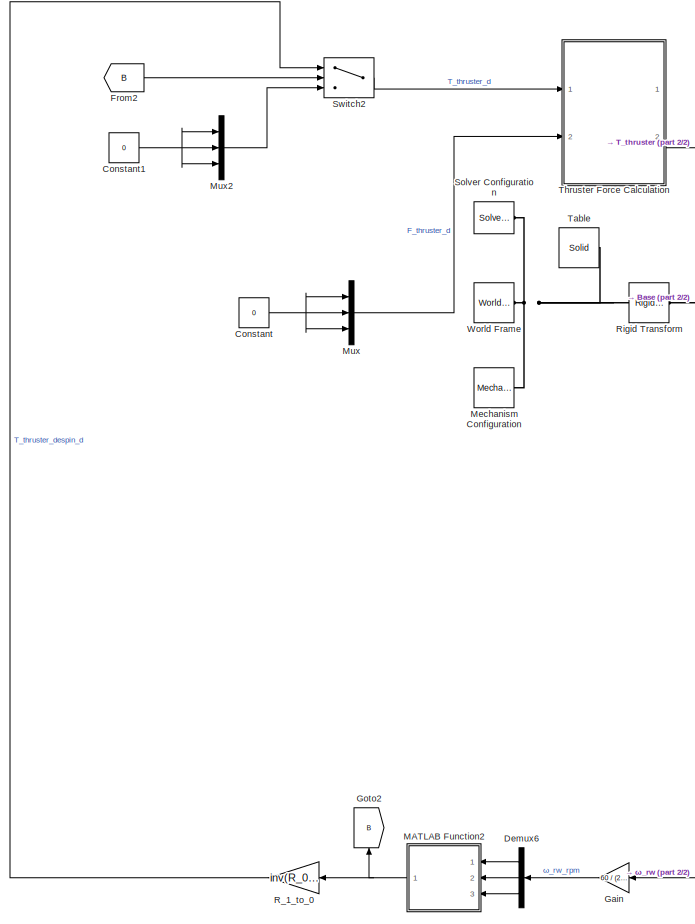
[diagram: root canvas - part 1/2, left side, full height]
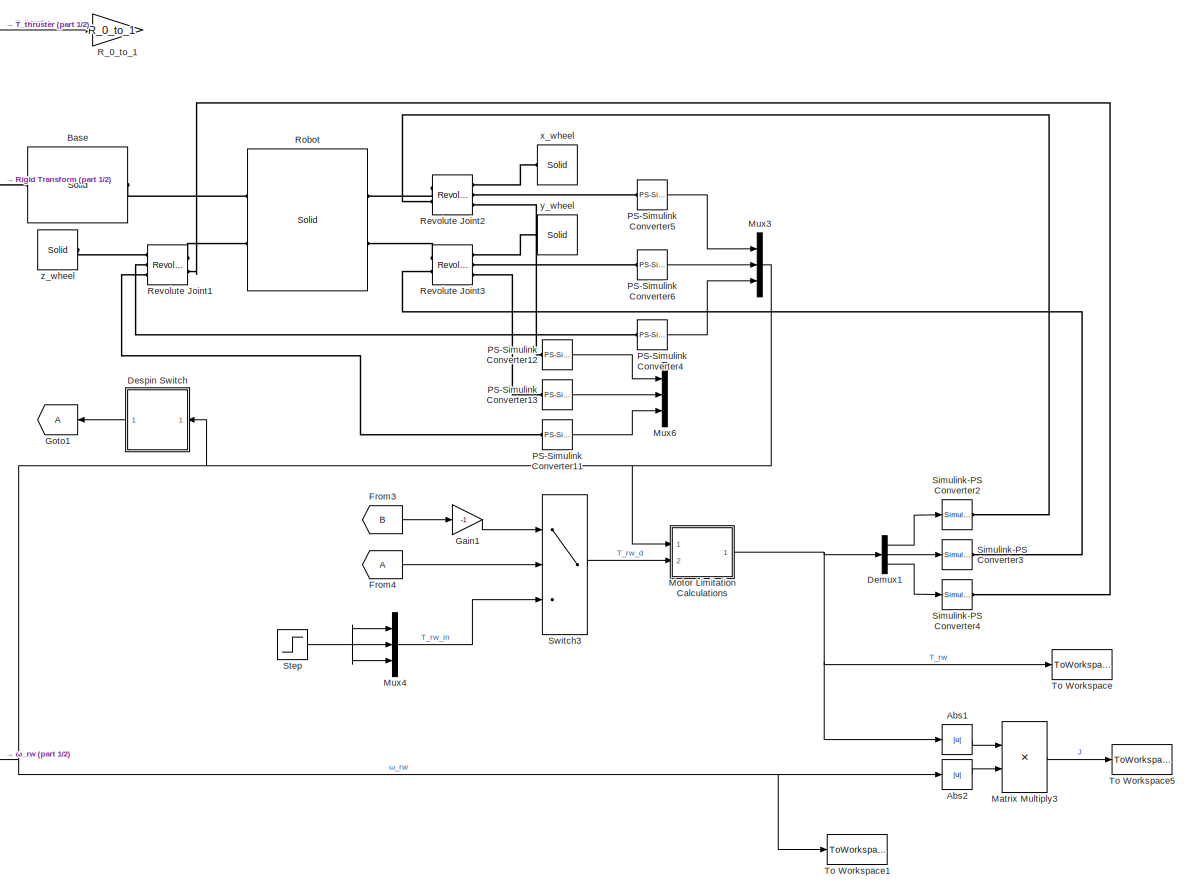
[diagram: root canvas - part 2/2, right side, full height]
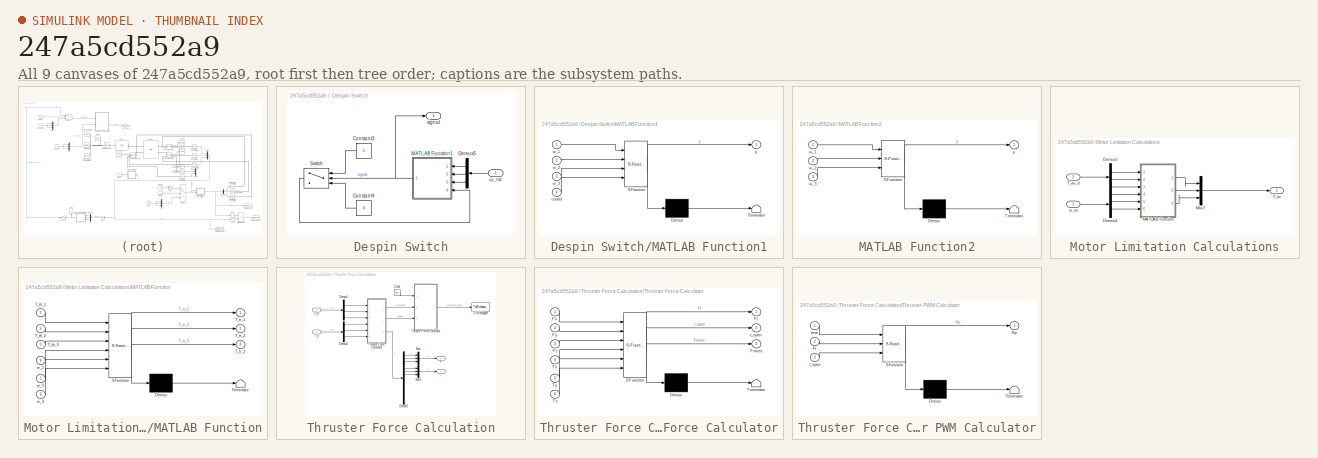
[diagram: thumbnail index - all 9 canvases of the model, root first then tree order]
MODEL slx_247a5cd552a9
KIND model
CONFIG AbsTol = 1e-6
CONFIG EnableMultiTasking = off
CONFIG FixedStep = auto
CONFIG MaxStep = 0.001
CONFIG MinStep = auto
CONFIG RelTol = 1e-6
CONFIG SampleTimeConstraint = Unconstrained
CONFIG Solver = VariableStepAuto
CONFIG SolverName = VariableStepAuto
CONFIG StartTime = 0.0
CONFIG StopTime = 60
BLOCK [Abs] Abs1
  SaturateOnIntegerOverflow = off
BLOCK [Abs] Abs2
  SaturateOnIntegerOverflow = off
BLOCK [Reference] Base  REF=sm_lib/Body Elements/Solid
  Ports = [0, 0, 0, 0, 0, 1, 1]
  SourceBlock = sm_lib/Body Elements/Solid
  SourceProductBaseCode = MS
  SourceProductName = Simscape Multibody
  SourceType = Solid
BLOCK [Constant] Constant
  Value = 0
BLOCK [Constant] Constant1
  Value = 0
BLOCK [Demux] Demux1
  DisplayOption = bar
  Outputs = 3
  Ports = [1, 3]
BLOCK [Demux] Demux6
  DisplayOption = bar
  Outputs = 3
  Ports = [1, 3]
BLOCK [SubSystem] Despin Switch
  Ports = [1, 1]
  RequestExecContextInheritance = off
BLOCK [Constant] Despin Switch/Constant3
BLOCK [Constant] Despin Switch/Constant4
  Value = 0
BLOCK [Demux] Despin Switch/Demux5
  DisplayOption = bar
  Outputs = 3
  Ports = [1, 3]
BLOCK [SubSystem] Despin Switch/MATLAB Function1
  ErrorFcn = Stateflow.Translate.translate
  PermitHierarchicalResolution = ExplicitOnly
  Ports = [4, 1]
  RequestExecContextInheritance = off
  SFBlockType = MATLAB Function
  TreatAsAtomicUnit = on
BLOCK [Demux] Despin Switch/MATLAB Function1/ Demux 
  Outputs = 1
  Ports = [1, 1]
BLOCK [S-Function] Despin Switch/MATLAB Function1/ SFunction 
  EnableBusSupport = on
  FunctionName = sf_sfun
  PortCounts = [4 2]
  Ports = [4, 2]
  SFcnIsStateOwnerBlock = off
  SFunctionDeploymentMode = off
  Tag = Stateflow S-Function Simulink_Model 5
BLOCK [Terminator] Despin Switch/MATLAB Function1/ Terminator 
BLOCK [Inport] Despin Switch/MATLAB Function1/control
  IconDisplay = Port number
  Port = 4
BLOCK [Inport] Despin Switch/MATLAB Function1/w_1
  IconDisplay = Port number
BLOCK [Inport] Despin Switch/MATLAB Function1/w_2
  IconDisplay = Port number
  Port = 2
BLOCK [Inport] Despin Switch/MATLAB Function1/w_3
  IconDisplay = Port number
  Port = 3
BLOCK [Outport] Despin Switch/MATLAB Function1/y
  IconDisplay = Port number
BLOCK [Switch] Despin Switch/Switch
  Criteria = u2 > Threshold
  InputSameDT = off
  SaturateOnIntegerOverflow = off
BLOCK [Outport] Despin Switch/signal
  IconDisplay = Port number
BLOCK [Inport] Despin Switch/ω_rw
  IconDisplay = Port number
BLOCK [From] From2
  GotoTag = B
BLOCK [From] From3
  GotoTag = B
BLOCK [From] From4
BLOCK [Gain] Gain
  Gain = 60 / (2*pi)
  OutDataTypeStr = Inherit: Inherit via internal rule
  ParamDataTypeStr = Inherit: Inherit via internal rule
  SaturateOnIntegerOverflow = off
BLOCK [Gain] Gain1
  Gain = -1
  OutDataTypeStr = Inherit: Inherit via internal rule
  ParamDataTypeStr = Inherit: Inherit via internal rule
  SaturateOnIntegerOverflow = off
BLOCK [Goto] Goto1
BLOCK [Goto] Goto2
  GotoTag = B
BLOCK [SubSystem] MATLAB Function2
  ErrorFcn = Stateflow.Translate.translate
  PermitHierarchicalResolution = ExplicitOnly
  Ports = [3, 1]
  RequestExecContextInheritance = off
  SFBlockType = MATLAB Function
  TreatAsAtomicUnit = on
BLOCK [Demux] MATLAB Function2/ Demux 
  Outputs = 1
  Ports = [1, 1]
BLOCK [S-Function] MATLAB Function2/ SFunction 
  EnableBusSupport = on
  FunctionName = sf_sfun
  PortCounts = [3 2]
  Ports = [3, 2]
  SFcnIsStateOwnerBlock = off
  SFunctionDeploymentMode = off
  Tag = Stateflow S-Function Simulink_Model 6
BLOCK [Terminator] MATLAB Function2/ Terminator 
BLOCK [Inport] MATLAB Function2/w_1
  IconDisplay = Port number
BLOCK [Inport] MATLAB Function2/w_2
  IconDisplay = Port number
  Port = 2
BLOCK [Inport] MATLAB Function2/w_3
  IconDisplay = Port number
  Port = 3
BLOCK [Outport] MATLAB Function2/y
  IconDisplay = Port number
BLOCK [Product] Matrix Multiply3
  InputSameDT = off
  OutDataTypeStr = Inherit: Inherit via internal rule
  Ports = [2, 1]
  RndMeth = Floor
  SaturateOnIntegerOverflow = off
BLOCK [Reference] Mechanism Configuration  REF=sm_lib/Utilities/Mechanism
Configuration
  Ports = [0, 0, 0, 0, 0, 0, 1]
  SourceBlock = sm_lib/Utilities/Mechanism\nConfiguration
  SourceProductBaseCode = MS
  SourceProductName = Simscape Multibody
  SourceType = Mechanism\nConfiguration
BLOCK [SubSystem] Motor Limitation Calculations
  Ports = [2, 1]
  RequestExecContextInheritance = off
BLOCK [Demux] Motor Limitation Calculations/Demux3
  DisplayOption = bar
  Outputs = 3
  Ports = [1, 3]
BLOCK [Demux] Motor Limitation Calculations/Demux4
  DisplayOption = bar
  Outputs = 3
  Ports = [1, 3]
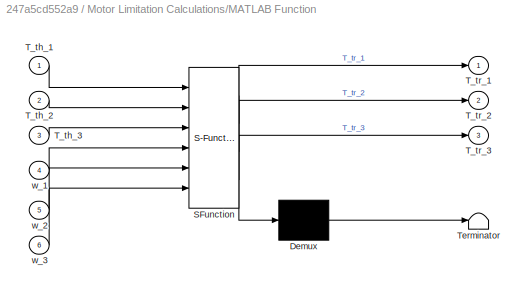
BLOCK [SubSystem] Motor Limitation Calculations/MATLAB Function
  ErrorFcn = Stateflow.Translate.translate
  PermitHierarchicalResolution = ExplicitOnly
  Ports = [6, 3]
  RequestExecContextInheritance = off
  SFBlockType = MATLAB Function
  TreatAsAtomicUnit = on
BLOCK [Demux] Motor Limitation Calculations/MATLAB Function/ Demux 
  Outputs = 1
  Ports = [1, 1]
BLOCK [S-Function] Motor Limitation Calculations/MATLAB Function/ SFunction 
  EnableBusSupport = on
  FunctionName = sf_sfun
  PortCounts = [6 4]
  Ports = [6, 4]
  SFcnIsStateOwnerBlock = off
  SFunctionDeploymentMode = off
  Tag = Stateflow S-Function Simulink_Model 17
BLOCK [Terminator] Motor Limitation Calculations/MATLAB Function/ Terminator 
BLOCK [Inport] Motor Limitation Calculations/MATLAB Function/T_th_1
  IconDisplay = Port number
BLOCK [Inport] Motor Limitation Calculations/MATLAB Function/T_th_2
  IconDisplay = Port number
  Port = 2
BLOCK [Inport] Motor Limitation Calculations/MATLAB Function/T_th_3
  IconDisplay = Port number
  Port = 3
BLOCK [Outport] Motor Limitation Calculations/MATLAB Function/T_tr_1
  IconDisplay = Port number
BLOCK [Outport] Motor Limitation Calculations/MATLAB Function/T_tr_2
  IconDisplay = Port number
  Port = 2
BLOCK [Outport] Motor Limitation Calculations/MATLAB Function/T_tr_3
  IconDisplay = Port number
  Port = 3
BLOCK [Inport] Motor Limitation Calculations/MATLAB Function/w_1
  IconDisplay = Port number
  Port = 4
BLOCK [Inport] Motor Limitation Calculations/MATLAB Function/w_2
  IconDisplay = Port number
  Port = 5
BLOCK [Inport] Motor Limitation Calculations/MATLAB Function/w_3
  IconDisplay = Port number
  Port = 6
BLOCK [Mux] Motor Limitation Calculations/Mux7
  DisplayOption = bar
  Inputs = 3
  Ports = [3, 1]
BLOCK [Outport] Motor Limitation Calculations/T_rw
  IconDisplay = Port number
BLOCK [Inport] Motor Limitation Calculations/T_rw_d
  IconDisplay = Port number
  Port = 2
BLOCK [Inport] Motor Limitation Calculations/ω_rw
  IconDisplay = Port number
BLOCK [Mux] Mux
  DisplayOption = bar
  Inputs = 3
  Ports = [3, 1]
BLOCK [Mux] Mux2
  DisplayOption = bar
  Inputs = 3
  Ports = [3, 1]
BLOCK [Mux] Mux3
  DisplayOption = bar
  Inputs = 3
  Ports = [3, 1]
BLOCK [Mux] Mux4
  DisplayOption = bar
  Inputs = 3
  Ports = [3, 1]
BLOCK [Mux] Mux6
  DisplayOption = bar
  Inputs = 3
  Ports = [3, 1]
BLOCK [Reference] PS-Simulink Converter11  REF=nesl_utility/PS-Simulink
Converter
  Ports = [0, 1, 0, 0, 0, 1]
  SourceBlock = nesl_utility/PS-Simulink\nConverter
  SourceProductBaseCode = SS
  SourceProductName = Simscape
  SourceType = PS-Simulink\nConverter
BLOCK [Reference] PS-Simulink Converter12  REF=nesl_utility/PS-Simulink
Converter
  Ports = [0, 1, 0, 0, 0, 1]
  SourceBlock = nesl_utility/PS-Simulink\nConverter
  SourceProductBaseCode = SS
  SourceProductName = Simscape
  SourceType = PS-Simulink\nConverter
BLOCK [Reference] PS-Simulink Converter13  REF=nesl_utility/PS-Simulink
Converter
  Ports = [0, 1, 0, 0, 0, 1]
  SourceBlock = nesl_utility/PS-Simulink\nConverter
  SourceProductBaseCode = SS
  SourceProductName = Simscape
  SourceType = PS-Simulink\nConverter
BLOCK [Reference] PS-Simulink Converter4  REF=nesl_utility/PS-Simulink
Converter
  Ports = [0, 1, 0, 0, 0, 1]
  SourceBlock = nesl_utility/PS-Simulink\nConverter
  SourceProductBaseCode = SS
  SourceProductName = Simscape
  SourceType = PS-Simulink\nConverter
BLOCK [Reference] PS-Simulink Converter5  REF=nesl_utility/PS-Simulink
Converter
  Ports = [0, 1, 0, 0, 0, 1]
  SourceBlock = nesl_utility/PS-Simulink\nConverter
  SourceProductBaseCode = SS
  SourceProductName = Simscape
  SourceType = PS-Simulink\nConverter
BLOCK [Reference] PS-Simulink Converter6  REF=nesl_utility/PS-Simulink
Converter
  Ports = [0, 1, 0, 0, 0, 1]
  SourceBlock = nesl_utility/PS-Simulink\nConverter
  SourceProductBaseCode = SS
  SourceProductName = Simscape
  SourceType = PS-Simulink\nConverter
BLOCK [Gain] R_0_to_1
  Gain = R_0_to_1
  Multiplication = Matrix(K*u) (u vector)
  OutDataTypeStr = Inherit: Inherit via internal rule
  ParamDataTypeStr = Inherit: Inherit via internal rule
  SaturateOnIntegerOverflow = off
BLOCK [Gain] R_1_to_0
  Gain = inv(R_0_to_1)
  Multiplication = Matrix(K*u) (u vector)
  OutDataTypeStr = Inherit: Inherit via internal rule
  ParamDataTypeStr = Inherit: Inherit via internal rule
  SaturateOnIntegerOverflow = off
BLOCK [Reference] Revolute Joint1  REF=sm_lib/Joints/Revolute Joint
  Ports = [0, 0, 0, 0, 0, 2, 3]
  SourceBlock = sm_lib/Joints/Revolute Joint
  SourceProductBaseCode = MS
  SourceProductName = Simscape Multibody
  SourceType = Revolute Joint
BLOCK [Reference] Revolute Joint2  REF=sm_lib/Joints/Revolute Joint
  Ports = [0, 0, 0, 0, 0, 2, 3]
  SourceBlock = sm_lib/Joints/Revolute Joint
  SourceProductBaseCode = MS
  SourceProductName = Simscape Multibody
  SourceType = Revolute Joint
BLOCK [Reference] Revolute Joint3  REF=sm_lib/Joints/Revolute Joint
  Ports = [0, 0, 0, 0, 0, 2, 3]
  SourceBlock = sm_lib/Joints/Revolute Joint
  SourceProductBaseCode = MS
  SourceProductName = Simscape Multibody
  SourceType = Revolute Joint
BLOCK [Reference] Rigid Transform  REF=sm_lib/Frames and
Transforms/Rigid
Transform
  Ports = [0, 0, 0, 0, 0, 1, 1]
  SourceBlock = sm_lib/Frames and\nTransforms/Rigid\nTransform
  SourceProductBaseCode = MS
  SourceProductName = Simscape Multibody
  SourceType = Rigid\nTransform
BLOCK [Reference] Robot  REF=sm_lib/Body Elements/Solid
  Ports = [0, 0, 0, 0, 0, 2, 2]
  SourceBlock = sm_lib/Body Elements/Solid
  SourceProductBaseCode = MS
  SourceProductName = Simscape Multibody
  SourceType = Solid
BLOCK [Reference] Simulink-PS Converter2  REF=nesl_utility/Simulink-PS
Converter
  Ports = [1, 0, 0, 0, 0, 0, 1]
  SourceBlock = nesl_utility/Simulink-PS\nConverter
  SourceProductBaseCode = SS
  SourceProductName = Simscape
  SourceType = Simulink-PS\nConverter
BLOCK [Reference] Simulink-PS Converter3  REF=nesl_utility/Simulink-PS
Converter
  Ports = [1, 0, 0, 0, 0, 0, 1]
  SourceBlock = nesl_utility/Simulink-PS\nConverter
  SourceProductBaseCode = SS
  SourceProductName = Simscape
  SourceType = Simulink-PS\nConverter
BLOCK [Reference] Simulink-PS Converter4  REF=nesl_utility/Simulink-PS
Converter
  Ports = [1, 0, 0, 0, 0, 0, 1]
  SourceBlock = nesl_utility/Simulink-PS\nConverter
  SourceProductBaseCode = SS
  SourceProductName = Simscape
  SourceType = Simulink-PS\nConverter
BLOCK [Reference] Solver Configuration  REF=nesl_utility/Solver
Configuration
  Ports = [0, 0, 0, 0, 0, 0, 1]
  SourceBlock = nesl_utility/Solver\nConfiguration
  SourceProductBaseCode = SS
  SourceProductName = Simscape
  SourceType = Solver\nConfiguration
BLOCK [Step] Step
  After = 0
  Before = 0.01
  SampleTime = 0
  Time = 30
BLOCK [Switch] Switch2
  Criteria = u2 > Threshold
  InputSameDT = off
  SaturateOnIntegerOverflow = off
BLOCK [Switch] Switch3
  Criteria = u2 > Threshold
  InputSameDT = off
  SaturateOnIntegerOverflow = off
BLOCK [Reference] Table  REF=sm_lib/Body Elements/Solid
  Ports = [0, 0, 0, 0, 0, 0, 1]
  SourceBlock = sm_lib/Body Elements/Solid
  SourceProductBaseCode = MS
  SourceProductName = Simscape Multibody
  SourceType = Solid
BLOCK [SubSystem] Thruster Force Calculation
  Ports = [2, 2]
  RequestExecContextInheritance = off
BLOCK [Clock] Thruster Force Calculation/Clock
BLOCK [Demux] Thruster Force Calculation/Demux1
  DisplayOption = bar
  Outputs = 3
  Ports = [1, 3]
BLOCK [Demux] Thruster Force Calculation/Demux2
  DisplayOption = bar
  Outputs = 3
  Ports = [1, 3]
BLOCK [Demux] Thruster Force Calculation/Demux3
  DisplayOption = bar
  Outputs = 12
  Ports = [1, 12]
BLOCK [Outport] Thruster Force Calculation/F
  IconDisplay = Port number
BLOCK [Inport] Thruster Force Calculation/F_d
  IconDisplay = Port number
  Port = 2
BLOCK [Mux] Thruster Force Calculation/Mux
  DisplayOption = bar
  Inputs = 3
  Ports = [3, 1]
BLOCK [Mux] Thruster Force Calculation/Mux1
  DisplayOption = bar
  Inputs = 3
  Ports = [3, 1]
BLOCK [Outport] Thruster Force Calculation/T
  IconDisplay = Port number
  Port = 2
BLOCK [Inport] Thruster Force Calculation/T_d
  IconDisplay = Port number
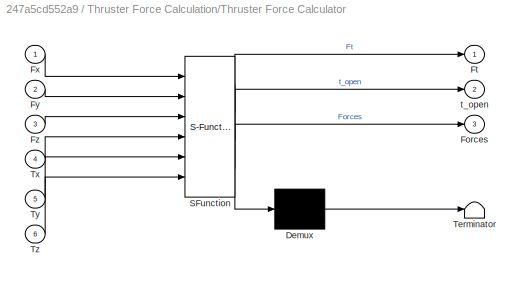
BLOCK [SubSystem] Thruster Force Calculation/Thruster Force Calculator
  ErrorFcn = Stateflow.Translate.translate
  PermitHierarchicalResolution = ExplicitOnly
  Ports = [6, 3]
  RequestExecContextInheritance = off
  SFBlockType = MATLAB Function
  TreatAsAtomicUnit = on
BLOCK [Demux] Thruster Force Calculation/Thruster Force Calculator/ Demux 
  Outputs = 1
  Ports = [1, 1]
BLOCK [S-Function] Thruster Force Calculation/Thruster Force Calculator/ SFunction 
  EnableBusSupport = on
  FunctionName = sf_sfun
  PortCounts = [6 4]
  Ports = [6, 4]
  SFcnIsStateOwnerBlock = off
  SFunctionDeploymentMode = off
  Tag = Stateflow S-Function Simulink_Model 3
BLOCK [Terminator] Thruster Force Calculation/Thruster Force Calculator/ Terminator 
BLOCK [Outport] Thruster Force Calculation/Thruster Force Calculator/Forces
  IconDisplay = Port number
  Port = 3
BLOCK [Outport] Thruster Force Calculation/Thruster Force Calculator/Ft
  IconDisplay = Port number
BLOCK [Inport] Thruster Force Calculation/Thruster Force Calculator/Fx
  IconDisplay = Port number
BLOCK [Inport] Thruster Force Calculation/Thruster Force Calculator/Fy
  IconDisplay = Port number
  Port = 2
BLOCK [Inport] Thruster Force Calculation/Thruster Force Calculator/Fz
  IconDisplay = Port number
  Port = 3
BLOCK [Inport] Thruster Force Calculation/Thruster Force Calculator/Tx
  IconDisplay = Port number
  Port = 4
BLOCK [Inport] Thruster Force Calculation/Thruster Force Calculator/Ty
  IconDisplay = Port number
  Port = 5
BLOCK [Inport] Thruster Force Calculation/Thruster Force Calculator/Tz
  IconDisplay = Port number
  Port = 6
BLOCK [Outport] Thruster Force Calculation/Thruster Force Calculator/t_open
  IconDisplay = Port number
  Port = 2
BLOCK [SubSystem] Thruster Force Calculation/Thruster PWM Calculator
  ErrorFcn = Stateflow.Translate.translate
  PermitHierarchicalResolution = ExplicitOnly
  Ports = [3, 1]
  RequestExecContextInheritance = off
  SFBlockType = MATLAB Function
  TreatAsAtomicUnit = on
BLOCK [Demux] Thruster Force Calculation/Thruster PWM Calculator/ Demux 
  Outputs = 1
  Ports = [1, 1]
BLOCK [S-Function] Thruster Force Calculation/Thruster PWM Calculator/ SFunction 
  EnableBusSupport = on
  FunctionName = sf_sfun
  PortCounts = [3 2]
  Ports = [3, 2]
  SFcnIsStateOwnerBlock = off
  SFunctionDeploymentMode = off
  Tag = Stateflow S-Function Simulink_Model 4
BLOCK [Terminator] Thruster Force Calculation/Thruster PWM Calculator/ Terminator 
BLOCK [Inport] Thruster Force Calculation/Thruster PWM Calculator/Ft
  IconDisplay = Port number
  Port = 2
BLOCK [Outport] Thruster Force Calculation/Thruster PWM Calculator/Ftp
  IconDisplay = Port number
BLOCK [Inport] Thruster Force Calculation/Thruster PWM Calculator/t_open
  IconDisplay = Port number
  Port = 3
BLOCK [Inport] Thruster Force Calculation/Thruster PWM Calculator/time
  IconDisplay = Port number
BLOCK [ToWorkspace] Thruster Force Calculation/To Workspace
  FixptAsFi = on
  MaxDataPoints = inf
  Ports = [1]
  SampleTime = -1
  Save2DSignal = 3-D array (concatenate along third dimension)
  VariableName = F_thruster
BLOCK [ToWorkspace] To Workspace
  FixptAsFi = on
  MaxDataPoints = inf
  Ports = [1]
  SampleTime = -1
  Save2DSignal = 3-D array (concatenate along third dimension)
  VariableName = T
BLOCK [ToWorkspace] To Workspace1
  FixptAsFi = on
  MaxDataPoints = inf
  Ports = [1]
  SampleTime = -1
  Save2DSignal = 3-D array (concatenate along third dimension)
  VariableName = w_rw
BLOCK [ToWorkspace] To Workspace5
  FixptAsFi = on
  MaxDataPoints = inf
  Ports = [1]
  SampleTime = -1
  Save2DSignal = 3-D array (concatenate along third dimension)
  VariableName = J
BLOCK [Reference] World Frame  REF=sm_lib/Frames and
Transforms/World Frame
  Ports = [0, 0, 0, 0, 0, 0, 1]
  SourceBlock = sm_lib/Frames and\nTransforms/World Frame
  SourceProductBaseCode = MS
  SourceProductName = Simscape Multibody
  SourceType = World Frame
BLOCK [Reference] x_wheel  REF=sm_lib/Body Elements/Solid
  Ports = [0, 0, 0, 0, 0, 1]
  SourceBlock = sm_lib/Body Elements/Solid
  SourceProductBaseCode = MS
  SourceProductName = Simscape Multibody
  SourceType = Solid
BLOCK [Reference] y_wheel  REF=sm_lib/Body Elements/Solid
  Ports = [0, 0, 0, 0, 0, 1]
  SourceBlock = sm_lib/Body Elements/Solid
  SourceProductBaseCode = MS
  SourceProductName = Simscape Multibody
  SourceType = Solid
BLOCK [Reference] z_wheel  REF=sm_lib/Body Elements/Solid
  Ports = [0, 0, 0, 0, 0, 1]
  SourceBlock = sm_lib/Body Elements/Solid
  SourceProductBaseCode = MS
  SourceProductName = Simscape Multibody
  SourceType = Solid
LINE Abs1:1 -> Matrix Multiply3:1
LINE Abs2:1 -> Matrix Multiply3:2
NET Constant1:1 -> Mux2:1, Mux2:2, Mux2:3
NET Constant:1 -> Mux:1, Mux:2, Mux:3
LINE Demux1:1 -> Simulink-PS Converter2:1
LINE Demux1:2 -> Simulink-PS Converter3:1
LINE Demux1:3 -> Simulink-PS Converter4:1
LINE Demux6:1 -> MATLAB Function2:1
LINE Demux6:2 -> MATLAB Function2:2
LINE Demux6:3 -> MATLAB Function2:3
LINE Despin Switch/Constant3:1 -> Despin Switch/Switch:1
LINE Despin Switch/Constant4:1 -> Despin Switch/Switch:3
LINE Despin Switch/Demux5:1 -> Despin Switch/MATLAB Function1:1
LINE Despin Switch/Demux5:2 -> Despin Switch/MATLAB Function1:2
LINE Despin Switch/Demux5:3 -> Despin Switch/MATLAB Function1:3
NET Despin Switch/MATLAB Function1:1 -> Despin Switch/Switch:2, Despin Switch/signal:1
LINE Despin Switch/Switch:1 -> Despin Switch/MATLAB Function1:4
LINE Despin Switch/ω_rw:1 -> Despin Switch/Demux5:1
LINE Despin Switch:1 -> Goto1:1
LINE From2:1 -> Switch2:2
LINE From3:1 -> Gain1:1
LINE From4:1 -> Switch3:2
LINE Gain1:1 -> Switch3:1
LINE Gain:1 -> Demux6:1
NET MATLAB Function2:1 -> Goto2:1, R_1_to_0:1
LINE Matrix Multiply3:1 -> To Workspace5:1
LINE Motor Limitation Calculations/Demux3:1 -> Motor Limitation Calculations/MATLAB Function:1
LINE Motor Limitation Calculations/Demux3:2 -> Motor Limitation Calculations/MATLAB Function:2
LINE Motor Limitation Calculations/Demux3:3 -> Motor Limitation Calculations/MATLAB Function:3
LINE Motor Limitation Calculations/Demux4:1 -> Motor Limitation Calculations/MATLAB Function:4
LINE Motor Limitation Calculations/Demux4:2 -> Motor Limitation Calculations/MATLAB Function:5
LINE Motor Limitation Calculations/Demux4:3 -> Motor Limitation Calculations/MATLAB Function:6
LINE Motor Limitation Calculations/MATLAB Function:1 -> Motor Limitation Calculations/Mux7:1
LINE Motor Limitation Calculations/MATLAB Function:2 -> Motor Limitation Calculations/Mux7:2
LINE Motor Limitation Calculations/MATLAB Function:3 -> Motor Limitation Calculations/Mux7:3
LINE Motor Limitation Calculations/Mux7:1 -> Motor Limitation Calculations/T_rw:1
LINE Motor Limitation Calculations/T_rw_d:1 -> Motor Limitation Calculations/Demux3:1
LINE Motor Limitation Calculations/ω_rw:1 -> Motor Limitation Calculations/Demux4:1
NET Motor Limitation Calculations:1 -> Abs1:1, Demux1:1, To Workspace:1
LINE Mux2:1 -> Switch2:3
NET Mux3:1 -> Abs2:1, Despin Switch:1, Gain:1, Motor Limitation Calculations:1, To Workspace1:1
LINE Mux4:1 -> Switch3:3
LINE Mux:1 -> Thruster Force Calculation:2
LINE PS-Simulink Converter11:1 -> Mux6:3
LINE PS-Simulink Converter12:1 -> Mux6:1
LINE PS-Simulink Converter13:1 -> Mux6:2
LINE PS-Simulink Converter4:1 -> Mux3:3
LINE PS-Simulink Converter5:1 -> Mux3:1
LINE PS-Simulink Converter6:1 -> Mux3:2
LINE R_1_to_0:1 -> Switch2:1
NET Step:1 -> Mux4:1, Mux4:2, Mux4:3
LINE Switch2:1 -> Thruster Force Calculation:1
LINE Switch3:1 -> Motor Limitation Calculations:2
LINE Thruster Force Calculation/Clock:1 -> Thruster Force Calculation/Thruster PWM Calculator:1
LINE Thruster Force Calculation/Demux1:1 -> Thruster Force Calculation/Thruster Force Calculator:1
LINE Thruster Force Calculation/Demux1:2 -> Thruster Force Calculation/Thruster Force Calculator:2
LINE Thruster Force Calculation/Demux1:3 -> Thruster Force Calculation/Thruster Force Calculator:3
LINE Thruster Force Calculation/Demux2:1 -> Thruster Force Calculation/Thruster Force Calculator:4
LINE Thruster Force Calculation/Demux2:2 -> Thruster Force Calculation/Thruster Force Calculator:5
LINE Thruster Force Calculation/Demux2:3 -> Thruster Force Calculation/Thruster Force Calculator:6
LINE Thruster Force Calculation/Demux3:1 -> Thruster Force Calculation/Mux:1
LINE Thruster Force Calculation/Demux3:2 -> Thruster Force Calculation/Mux:2
LINE Thruster Force Calculation/Demux3:3 -> Thruster Force Calculation/Mux:3
LINE Thruster Force Calculation/Demux3:4 -> Thruster Force Calculation/Mux1:1
LINE Thruster Force Calculation/Demux3:5 -> Thruster Force Calculation/Mux1:2
LINE Thruster Force Calculation/Demux3:6 -> Thruster Force Calculation/Mux1:3
LINE Thruster Force Calculation/F_d:1 -> Thruster Force Calculation/Demux1:1
LINE Thruster Force Calculation/Mux1:1 -> Thruster Force Calculation/T:1
LINE Thruster Force Calculation/Mux:1 -> Thruster Force Calculation/F:1
LINE Thruster Force Calculation/T_d:1 -> Thruster Force Calculation/Demux2:1
LINE Thruster Force Calculation/Thruster Force Calculator:1 -> Thruster Force Calculation/Thruster PWM Calculator:2
LINE Thruster Force Calculation/Thruster Force Calculator:2 -> Thruster Force Calculation/Thruster PWM Calculator:3
LINE Thruster Force Calculation/Thruster Force Calculator:3 -> Thruster Force Calculation/Demux3:1
LINE Thruster Force Calculation/Thruster PWM Calculator:1 -> Thruster Force Calculation/To Workspace:1
LINE Thruster Force Calculation:2 -> R_0_to_1:1
PLINE Base:LConn1 -- Robot:RConn1
PLINE Base:RConn1 -- Rigid Transform:RConn1
PNET net1: Mechanism Configuration:RConn1 -- Rigid Transform:LConn1 -- Solver Configuration:RConn1 -- Table:RConn1 -- World Frame:RConn1
PLINE PS-Simulink Converter11:LConn1 -- Revolute Joint1:RConn3
PLINE PS-Simulink Converter12:LConn1 -- Revolute Joint2:RConn3
PLINE PS-Simulink Converter13:LConn1 -- Revolute Joint3:RConn3
PLINE PS-Simulink Converter4:LConn1 -- Revolute Joint1:RConn2
PLINE PS-Simulink Converter5:LConn1 -- Revolute Joint2:RConn2
PLINE PS-Simulink Converter6:LConn1 -- Revolute Joint3:RConn2
PLINE Revolute Joint1:LConn1 -- Robot:RConn2
PLINE Revolute Joint1:LConn2 -- Simulink-PS Converter4:RConn1
PLINE Revolute Joint1:RConn1 -- z_wheel:LConn1
PLINE Revolute Joint2:LConn1 -- Robot:LConn1
PLINE Revolute Joint2:LConn2 -- Simulink-PS Converter2:RConn1
PLINE Revolute Joint2:RConn1 -- x_wheel:LConn1
PLINE Revolute Joint3:LConn1 -- Robot:LConn2
PLINE Revolute Joint3:LConn2 -- Simulink-PS Converter3:RConn1
PLINE Revolute Joint3:RConn1 -- y_wheel:LConn1
note: NET lines group one-source signal fan-out (src -> all destinations, sorted); 1:1 wires keep LINE; PNET lines group multi-terminal physical nets as a canonical sorted terminal list (undirected conserving connections); 2-terminal nets keep the pairwise PLINE form
CHART Thruster Force 
Calculation/Thruster Force
Calculator states=1 transitions=1
  STATE_LABEL 'eML_blk_kernel()'
  STATE_LABEL 'SCRIPT:\nfunction [Ft,t_open,Forces]= fcn(Fx,Fy,Fz,Tx,Ty,Tz)\n\nf = [Fx;Fy;Fz;Tx;Ty;Tz];\n\nd = 0.2335;\nT = 0.1;\n\nA = [-1  cosd(60)   cosd(60)  0        0            0;\n      0  sind(60)  -sind(60)  0        0            0;\n      0     0          0      1        1            1;\n      0     0          0      d  -d*cosd(30)  -d*cosd(30);\n      0     0          0      0  -d*sind(30)   d*sind(30);\n      d ...<+2533ch>'
CHART Thruster Force 
Calculation/Thruster PWM
Calculator states=1 transitions=1
  STATE_LABEL 'eML_blk_kernel()'
  STATE_LABEL 'SCRIPT:\nfunction Ftp = fcn(time,Ft,t_open)\n\nP = 0.1;\n\nt = time - fix(time/P)*P;\nFtp = [0;0;0;0;0;0;0;0;0;0;0;0];\n\nfor i = 1:12\n    if t <= t_open(i)\n        Ftp(i) = Ft(i);\n    else\n        Ftp(i) = 0;\n    end\nend\n\n\n'
CHART Despin Switch/MATLAB Function1 states=1 transitions=1
  STATE_LABEL 'eML_blk_kernel()'
  STATE_LABEL 'SCRIPT:\nfunction y = fcn(w_1,w_2,w_3,control)\n\nw_1 = w_1 * 60 / (2*pi);\nw_2 = w_2 * 60 / (2*pi);\nw_3 = w_3 * 60 / (2*pi);\n\nif control == 0\n    y = 0;\nelse\n    if (abs(w_1) <= 50) && (abs(w_2) <= 50) && (abs(w_3) <= 50)\n        y = 0;\n    else\n        y = 1;\n    end\nend\n\nif (abs(w_1) >= 6000) || (abs(w_2) >= 6000) || (abs(w_3) >= 6000)\n    y = 1;\nend\n\n'
CHART MATLAB Function2 states=1 transitions=1
  STATE_LABEL 'eML_blk_kernel()'
  STATE_LABEL 'SCRIPT:\nfunction y = fcn(w_1,w_2,w_3)\n\nT_d = [0;0;0];\nt_disp = 1;\nmax_rpm = max([abs(w_1) abs(w_2) abs(w_3)]);\na_disp = (max_rpm - 50) / t_disp;\nI_rw_z = 418129.72/10^9;\nT_disp = I_rw_z * a_disp;\n% 0.0911;\n\nif abs(w_1) > 50\n    if w_1 > 0\n        T_d(1) = T_disp;\n    else\n        T_d(1) = -T_disp;\n    end\nelse\n    T_d(1) = 0;\nend\n\nif abs(w_2) > 50\n    if w_2 > 0\n        T_d(2) = T_disp;\n    else\n ...<+194ch>'
CHART Motor Limitation
Calculations/MATLAB Function states=1 transitions=1
  STATE_LABEL 'eML_blk_kernel()'
  STATE_LABEL 'SCRIPT:\nfunction [T_tr_1,T_tr_2,T_tr_3] = fcn(T_th_1,T_th_2,T_th_3,w_1,w_2,w_3)\n\nT_max = 3 * 0.0911;\nT_max_1 = T_max;\nT_max_2 = T_max;\nT_max_3 = T_max;\nT_max_c = T_max;\n\nif abs(w_1) > 0\n    if (abs(w_1) * abs(T_th_1)) >= 50\n        T_max_1 = 50/abs(w_1);\n    end\nend\n\nw_1 = w_1 * 60 / (2*pi);\n\nif abs(w_1) >= 10000\n    T_max_2 = 0;\nend\n\nif (abs(w_1)/265 + abs(T_th_1)*6920/265) >= 29.6\n    T_max_3 = ...<+1778ch>'
